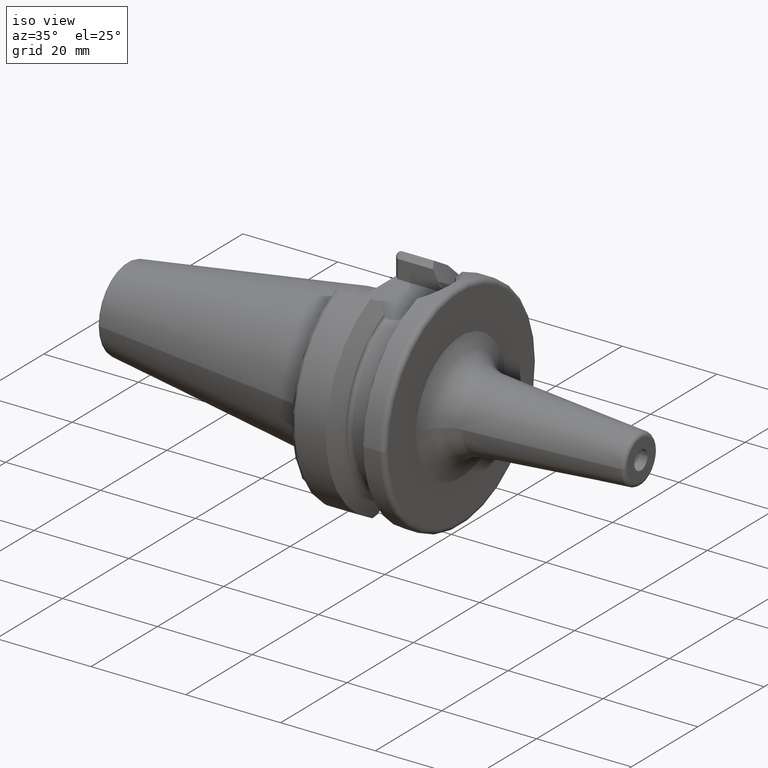
[diagram: clean part render]
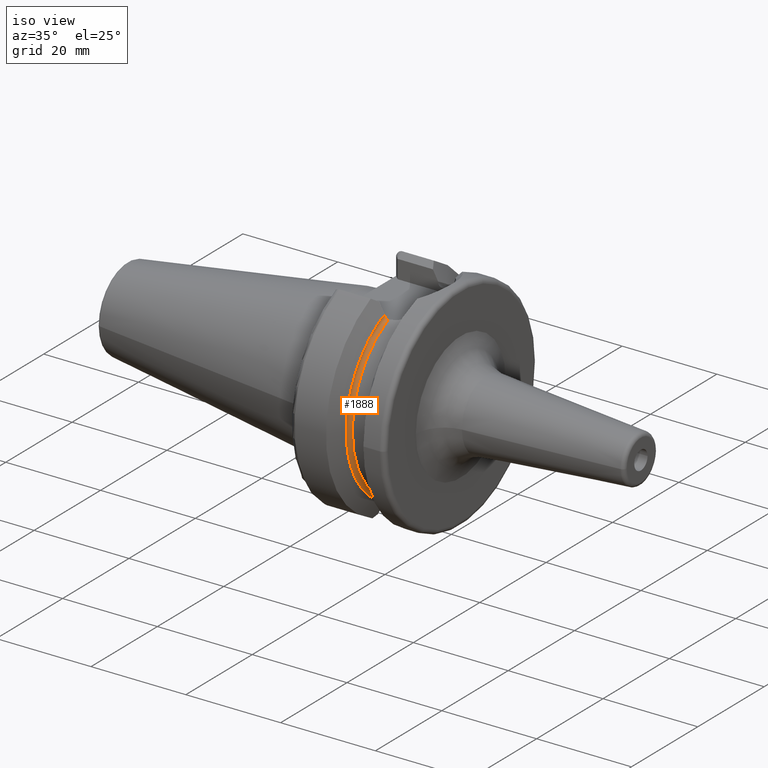
[diagram: same view with one face highlighted and labeled with its STEP entity id]
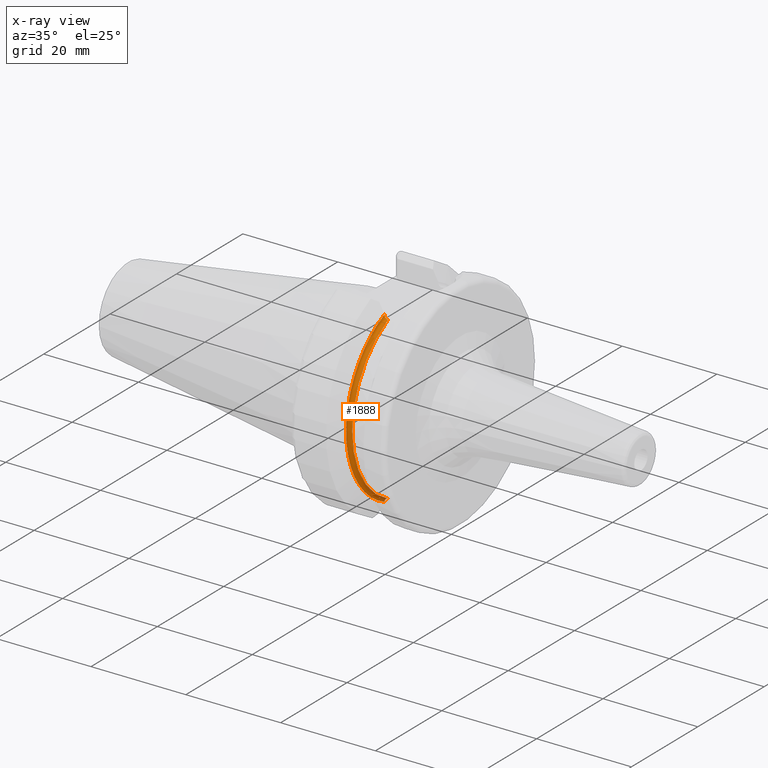
[diagram: x-ray of the same camera — body ghosted, the highlighted face saturated]
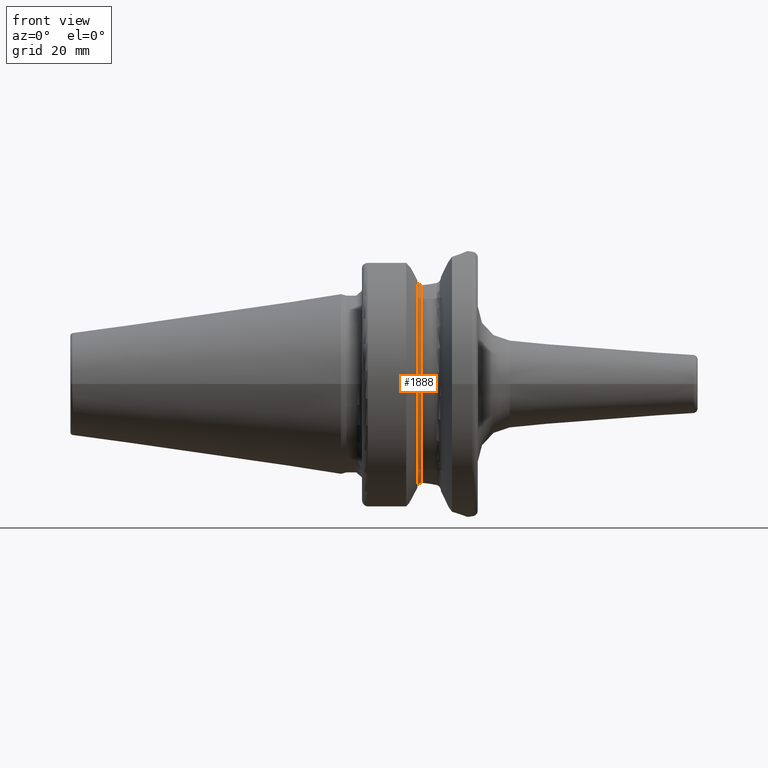
[diagram: same view with one face highlighted and labeled with its STEP entity id]
A machine part, iso view. The second image highlights one B-rep face of the part: STEP entity #1888.
The next image is the same camera in x-ray: the body ghosted, the highlighted face saturated — about 3% of this face is hidden behind the body in this view.
A second angle (front view) of the same face is appended — the face is thin or edge-on in the first view.
In plain terms, the highlighted toroidal blend (fillet) surface has major radius 19.625 mm and minor (blend) radius 0.75 mm.
Its self-contained STEP definition (entity closure, byte-faithful):
#375=CARTESIAN_POINT('',(1.23125E1,-8.011817443627E0,-1.709024301319E1));
#376=CARTESIAN_POINT('',(1.223412033661E1,-8.023141273833E0,-1.708493446022E1));
#377=CARTESIAN_POINT('',(1.208831797670E1,-8.041863754075E0,-1.710280413489E1));
#378=CARTESIAN_POINT('',(1.190448533030E1,-8.060802307436E0,-1.718929563694E1));
#379=CARTESIAN_POINT('',(1.175607673362E1,-8.072995940587E0,-1.732154273478E1));
#380=CARTESIAN_POINT('',(1.164652640216E1,-8.080224902242E0,-1.748652481923E1));
#381=CARTESIAN_POINT('',(1.157735932460E1,-8.084012208743E0,-1.768105664530E1));
#382=CARTESIAN_POINT('',(1.15625E1,-8.084736776791E0,-1.781380327923E1));
#383=CARTESIAN_POINT('',(1.15625E1,-8.084736776791E0,-1.788232804335E1));
#440=CARTESIAN_POINT('',(1.23125E1,0.E0,0.E0));
#441=DIRECTION('',(-1.E0,0.E0,0.E0));
#442=DIRECTION('',(0.E0,-4.244671493312E-1,-9.054433384473E-1));
#443=AXIS2_PLACEMENT_3D('',#440,#441,#442);
#457=CARTESIAN_POINT('',(1.15625E1,0.E0,0.E0));
#458=DIRECTION('',(-1.E0,0.E0,0.E0));
#459=DIRECTION('',(0.E0,-4.119611096454E-1,-9.112014289605E-1));
#460=AXIS2_PLACEMENT_3D('',#457,#458,#459);
#462=CARTESIAN_POINT('',(1.15625E1,-8.084736776791E0,1.788232804335E1));
#463=CARTESIAN_POINT('',(1.15625E1,-8.084736776791E0,1.781359730062E1));
#464=CARTESIAN_POINT('',(1.157743606483E1,-8.084008713788E0,1.768050385507E1));
#465=CARTESIAN_POINT('',(1.164702451808E1,-8.080196327678E0,1.748544180816E1));
#466=CARTESIAN_POINT('',(1.175695528065E1,-8.072931861565E0,1.732053584298E1));
#467=CARTESIAN_POINT('',(1.190535493158E1,-8.060719513235E0,1.718877876759E1));
#468=CARTESIAN_POINT('',(1.208874148617E1,-8.041810725138E0,1.710274000837E1));
#469=CARTESIAN_POINT('',(1.223427404262E1,-8.023119067298E0,1.708494487053E1));
#470=CARTESIAN_POINT('',(1.23125E1,-8.011817443627E0,1.709024301319E1));
#1146=CARTESIAN_POINT('',(1.15625E1,-8.084736776791E0,-1.788232804335E1));
#1147=CARTESIAN_POINT('',(1.15625E1,-8.084736776791E0,1.788232804335E1));
#1148=VERTEX_POINT('',#1146);
#1149=VERTEX_POINT('',#1147);
#1154=CARTESIAN_POINT('',(1.23125E1,-8.011817443627E0,-1.709024301319E1));
#1155=CARTESIAN_POINT('',(1.23125E1,-8.011817443627E0,1.709024301319E1));
#1156=VERTEX_POINT('',#1154);
#1157=VERTEX_POINT('',#1155);
#1875=CARTESIAN_POINT('',(1.23125E1,0.E0,0.E0));
#1876=DIRECTION('',(1.E0,0.E0,0.E0));
#1877=DIRECTION('',(0.E0,-1.E0,0.E0));
#1878=AXIS2_PLACEMENT_3D('',#1875,#1876,#1877);
#1879=TOROIDAL_SURFACE('',#1878,1.9625E1,7.5E-1);
#1880=ORIENTED_EDGE('',*,*,#1853,.F.);
#1881=ORIENTED_EDGE('',*,*,#1766,.T.);
#1883=ORIENTED_EDGE('',*,*,#1882,.T.);
#1885=ORIENTED_EDGE('',*,*,#1884,.T.);
#1886=EDGE_LOOP('',(#1880,#1881,#1883,#1885));
#1887=FACE_OUTER_BOUND('',#1886,.F.);
#1888=ADVANCED_FACE('',(#1887),#1879,.F.);
#384=B_SPLINE_CURVE_WITH_KNOTS('',3,(#375,#376,#377,#378,#379,#380,#381,#382,
#383),.UNSPECIFIED.,.F.,.F.,(4,1,1,1,1,1,4),(0.E0,1.666666666667E-1,
3.333333333333E-1,5.E-1,6.666666666667E-1,8.333333333333E-1,1.E0),
.UNSPECIFIED.);
#444=CIRCLE('',#443,1.8875E1);
#461=CIRCLE('',#460,1.9625E1);
#471=B_SPLINE_CURVE_WITH_KNOTS('',3,(#462,#463,#464,#465,#466,#467,#468,#469,
#470),.UNSPECIFIED.,.F.,.F.,(4,1,1,1,1,1,4),(0.E0,1.666666666667E-1,
3.333333333333E-1,5.E-1,6.666666666667E-1,8.333333333333E-1,1.E0),
.UNSPECIFIED.);
#1766=EDGE_CURVE('',#1156,#1148,#384,.T.);
#1853=EDGE_CURVE('',#1156,#1157,#444,.T.);
#1882=EDGE_CURVE('',#1148,#1149,#461,.T.);
#1884=EDGE_CURVE('',#1149,#1157,#471,.T.);